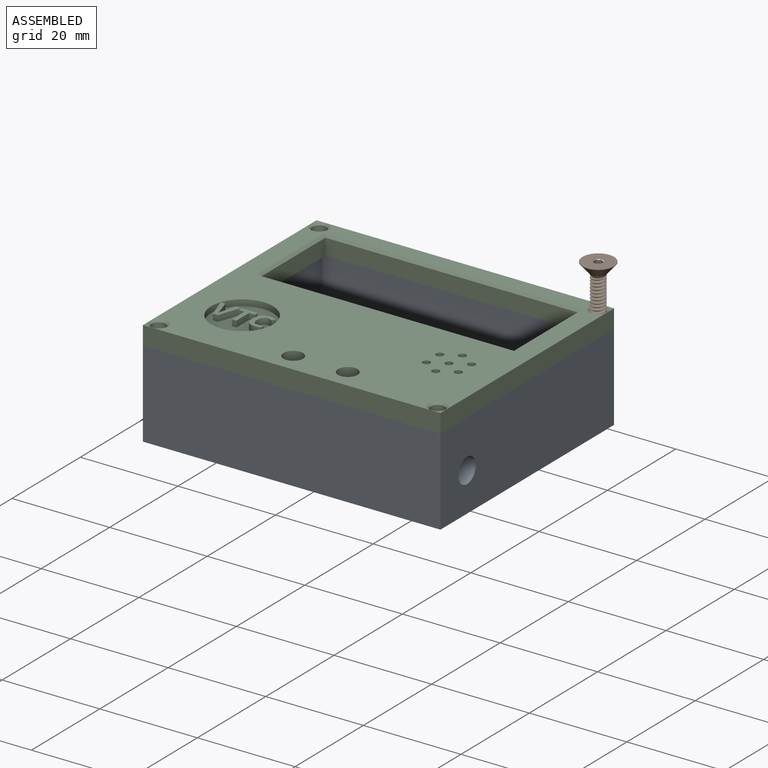
[diagram: assembled view]
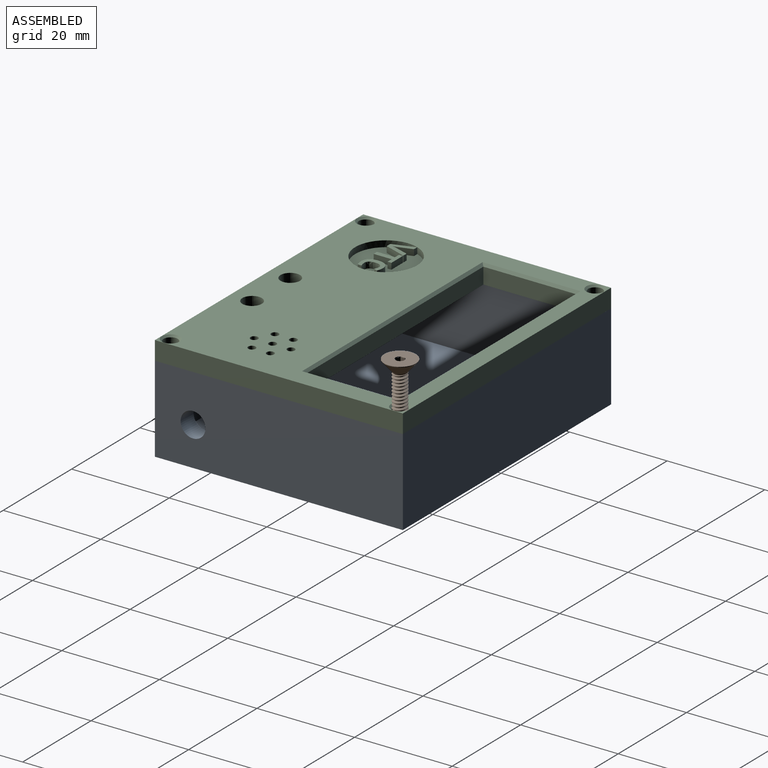
[diagram: assembled view, second angle]
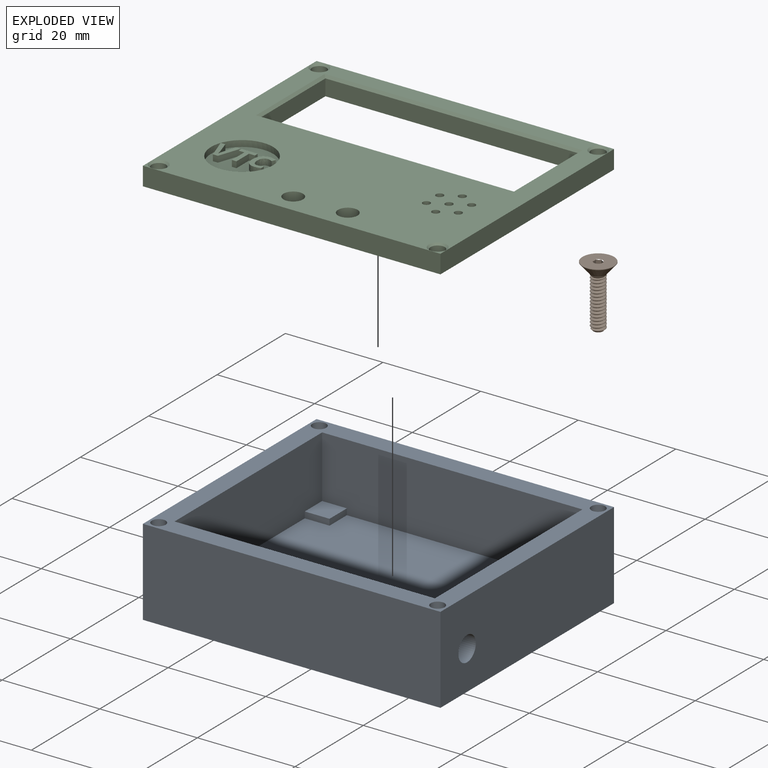
[diagram: exploded view]
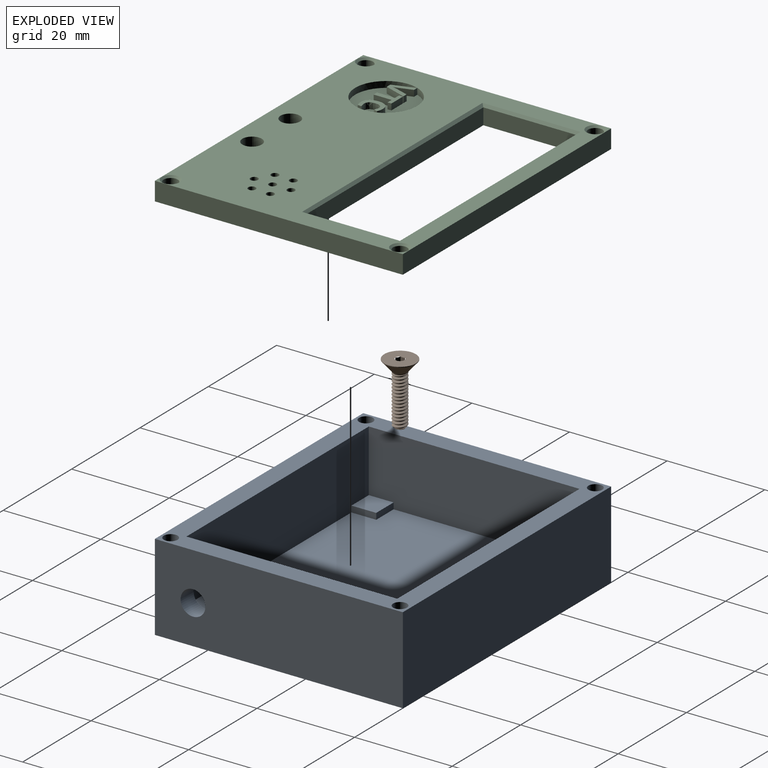
[diagram: exploded view, second angle]
ASSEMBLY  parts=3 mates=2
PART A: 30 faces, bbox 61x50.8x17.8 mm
  f0: plane 53.34x43.18mm, normal (0,0,1), area 2200mm2, adj f1,f2,f6,f11,f17,f18,f20,f21
  f1: plane 53.34x13.97mm, normal (0,1,0), area 732.3mm2, adj f0,f2,f6,f13,f18,f19,f27,f28
  f2: plane 43.18x13.97mm, normal (1,0,0), area 590.3mm2, adj f0,f1,f11,f13,f23,f25,f26,f28
  f3: plane 60.96x17.78mm, normal (0,-1,0), area 1083.9mm2, adj f4,f10,f13,f16
  f4: plane 50.8x17.78mm, normal (1,0,0), area 883mm2, adj f3,f5,f13,f16,f29
  f5: plane 60.96x17.78mm, normal (0,1,0), area 1083.9mm2, adj f4,f10,f13,f16
  f6: plane 43.18x13.97mm, normal (-1,0,0), area 570.1mm2, adj f0,f1,f11,f13,f17,f19,f20,f22
  f7: cylinder r=1.42mm len=13.97mm, axis (0,0,-1), area 124.9mm2, adj f13,f14
  f8: cylinder r=1.42mm len=17.78mm, axis (0,0,-1), area 158.9mm2, adj f13,f16
  f9: cylinder r=1.42mm len=13.97mm, axis (0,0,-1), area 124.9mm2, adj f13,f15
  f10: plane 50.8x17.78mm, normal (-1,0,0), area 903.2mm2, adj f3,f5,f13,f16
  f11: plane 53.34x13.97mm, normal (0,-1,0), area 732.3mm2, adj f0,f2,f6,f13,f21,f22,f24,f25
  f12: cylinder r=1.42mm len=17.78mm, axis (0,0,-1), area 158.9mm2, adj f13,f16
  f13: plane 60.96x50.8mm, normal (0,0,1), area 768.1mm2, adj f1,f2,f3,f4,f5,f6,f7,f8
  f14: plane 2.85x2.85mm, normal (0,0,1), area 6.4mm2, adj f7
  f15: plane 2.85x2.85mm, normal (0,0,1), area 6.4mm2, adj f9
  f16: plane 60.96x50.8mm, normal (0,0,-1), area 3084.1mm2, adj f3,f4,f5,f8,f10,f12
  f17: plane 5.08x1.27mm, normal (0,1,0), area 6.5mm2, adj f0,f6,f18,f19
  f18: plane 5.08x1.27mm, normal (-1,0,0), area 6.5mm2, adj f0,f1,f17,f19
  f19: plane 5.08x5.08mm, normal (0,0,1), area 25.8mm2, adj f1,f6,f17,f18
  f20: plane 5.08x1.27mm, normal (0,-1,0), area 6.5mm2, adj f0,f6,f21,f22
  f21: plane 5.08x1.27mm, normal (-1,0,0), area 6.5mm2, adj f0,f11,f20,f22
  f22: plane 5.08x5.08mm, normal (0,0,1), area 25.8mm2, adj f6,f11,f20,f21
  f23: plane 5.08x1.27mm, normal (0,-1,0), area 6.5mm2, adj f0,f2,f24,f25
  f24: plane 5.08x1.27mm, normal (1,0,0), area 6.5mm2, adj f0,f11,f23,f25
  f25: plane 5.08x5.08mm, normal (0,0,1), area 25.8mm2, adj f2,f11,f23,f24
  f26: plane 5.08x1.27mm, normal (0,1,0), area 6.5mm2, adj f0,f2,f27,f28
  f27: plane 5.08x1.27mm, normal (1,0,0), area 6.5mm2, adj f0,f1,f26,f28
  f28: plane 5.08x5.08mm, normal (0,0,1), area 25.8mm2, adj f1,f2,f26,f27
  f29: cylinder r=2.54mm len=5.08mm, axis (1,0,0), area 60.8mm2, adj f4,f6
PART B: 25 faces, bbox 6.8x13.2x6.8 mm
  f0: cylinder r=1.42mm len=9.91mm, axis (0,1,0), area 9.9mm2, adj f1,f6,f7,f24
  f1: cone r=0.95mm half-angle=45deg, axis (0,-1,0), area 0.6mm2, adj f0,f2,f6,f24
  f2: cone r=0.95mm half-angle=45deg, axis (0,-1,0), area 2.1mm2, adj f1,f3,f5,f6
  f3: cylinder r=1.01mm len=9.93mm, axis (0,-1,0), area 14.1mm2, adj f2,f4,f6,f24
  f4: cone r=1.42mm half-angle=46deg, axis (0,-1,0), area 2.3mm2, adj f3,f6,f7,f24
  f5: plane 1.89x1.89mm, normal (0,1,0), area 2.8mm2, adj f2
  f6: bspline ~10.93x3.29mm, area 57.2mm2, adj f0,f1,f2,f3,f4
  f7: torus R=1.73mm, axis (0,-1,0), area 2mm2, adj f0,f4,f8
  f8: cone r=1.5mm half-angle=41deg, axis (0,-1,0), area 39.5mm2, adj f7,f9
  f9: cylinder r=3.24mm len=6.48mm, axis (0,-1,0), area 2.1mm2, adj f8,f10
  f10: plane 6.48x6.48mm, normal (0,-1,0), area 30.3mm2, adj f9,f11,f19,f20,f21,f22,f23
  f11: cone r=0.92mm half-angle=60deg, axis (0,-1,0), area 0mm2, adj f10,f12
  f12: plane 1.76x1.2mm, normal (-1,0,0), area 1.3mm2, adj f11,f13,f17,f18
  f13: plane 1.83x1.59mm, normal (0,-1,0), area 2.2mm2, adj f12,f14,f15,f16,f17,f18
  f14: plane 1.76x1.08mm, normal (0.5,0,0.87), area 1.3mm2, adj f13,f15,f18,f22
  f15: plane 1.76x1.2mm, normal (1,0,0), area 1.3mm2, adj f13,f14,f16,f21
  f16: plane 1.76x1.08mm, normal (0.5,0,-0.87), area 1.3mm2, adj f13,f15,f17,f20
  f17: plane 1.76x1.08mm, normal (-0.5,0,-0.87), area 1.3mm2, adj f12,f13,f16,f19
  f18: plane 1.76x1.08mm, normal (-0.5,0,0.87), area 1.3mm2, adj f12,f13,f14,f23
  f19: cone r=0.92mm half-angle=60deg, axis (0,-1,0), area 0mm2, adj f10,f17
  f20: cone r=0.92mm half-angle=60deg, axis (0,-1,0), area 0mm2, adj f10,f16
  f21: cone r=0.92mm half-angle=60deg, axis (0,-1,0), area 0mm2, adj f10,f15
  f22: cone r=0.92mm half-angle=60deg, axis (0,-1,0), area 0mm2, adj f10,f14
  f23: cone r=0.92mm half-angle=60deg, axis (0,-1,0), area 0mm2, adj f10,f18
  f24: bspline ~10.5x3.29mm, area 57mm2, adj f0,f1,f3,f4
PART C: 71 faces, bbox 61x50.8x3.8 mm
  f0: plane 60.96x50.8mm, normal (0,0,1), area 1829.4mm2, adj f1,f2,f3,f7,f8,f12,f16,f17
  f1: plane 50.8x3.81mm, normal (-1,0,0), area 193.5mm2, adj f0,f2,f12,f15
  f2: plane 60.96x3.81mm, normal (0,-1,0), area 232.3mm2, adj f0,f1,f3,f15
  f3: plane 50.8x3.81mm, normal (1,0,0), area 193.5mm2, adj f0,f2,f12,f15
  f4: plane 19.05x3.3mm, normal (-1,0,0), area 62.9mm2, adj f5,f13,f15,f23
  f5: plane 51.82x3.3mm, normal (0,1,0), area 171.1mm2, adj f4,f6,f15,f21
  f6: plane 19.05x3.3mm, normal (1,0,0), area 62.9mm2, adj f5,f13,f15,f20
  f7: cylinder r=2mm len=4mm, axis (0,0,-1), area 47.9mm2, adj f0,f15
  f8: cylinder r=2mm len=4mm, axis (0,0,-1), area 47.9mm2, adj f0,f15
  f9: cylinder r=1.46mm len=3.43mm, axis (0,0,-1), area 31.5mm2, adj f15,f19
  f10: cylinder r=1.46mm len=3.43mm, axis (0,0,-1), area 31.5mm2, adj f15,f16
  f11: cylinder r=1.46mm len=3.43mm, axis (0,0,-1), area 31.5mm2, adj f15,f17
  f12: plane 60.96x3.81mm, normal (0,1,0), area 232.3mm2, adj f0,f1,f3,f15
  f13: plane 51.82x3.3mm, normal (0,-1,0), area 171.1mm2, adj f4,f6,f15,f22
  f14: cylinder r=1.46mm len=3.43mm, axis (0,0,-1), area 31.5mm2, adj f15,f18
  f15: plane 60.96x50.8mm, normal (0,0,-1), area 1931.1mm2, adj f1,f2,f3,f4,f5,f6,f7,f8
  f16: cone r=1.46mm half-angle=45deg, axis (0,0,1), area 5.6mm2, adj f0,f10
  f17: cone r=1.46mm half-angle=45deg, axis (0,0,1), area 5.6mm2, adj f0,f11
  f18: cone r=1.84mm half-angle=45deg, axis (0,0,1), area 5.6mm2, adj f0,f14
  f19: cone r=1.84mm half-angle=45deg, axis (0,0,1), area 5.6mm2, adj f0,f9
  f20: plane 20.07x0.51mm, normal (0.71,0,0.71), area 14.1mm2, adj f0,f6,f21,f22
  f21: plane 52.83x0.51mm, normal (0,0.71,0.71), area 37.6mm2, adj f0,f5,f20,f23
  f22: plane 52.83x0.51mm, normal (0,-0.71,0.71), area 37.6mm2, adj f0,f13,f20,f23
  f23: plane 20.07x0.51mm, normal (-0.71,0,0.71), area 14.1mm2, adj f0,f4,f21,f22
  f24: cylinder r=6.35mm len=12.7mm, axis (0,0,-1), area 60.8mm2, adj f15,f25
  f25: plane 12.7x12.7mm, normal (0,0,-1), area 113.9mm2, adj f24,f26,f27,f28,f29,f30,f31,f32
  f26: cylinder r=0.76mm len=2.29mm, axis (0,0,-1), area 10.9mm2, adj f0,f25
  f27: cylinder r=0.76mm len=2.29mm, axis (0,0,-1), area 10.9mm2, adj f0,f25
  f28: cylinder r=0.76mm len=2.29mm, axis (0,0,-1), area 10.9mm2, adj f0,f25
  f29: cylinder r=0.76mm len=2.29mm, axis (0,0,-1), area 10.9mm2, adj f0,f25
  f30: cylinder r=0.76mm len=2.29mm, axis (0,0,-1), area 10.9mm2, adj f0,f25
  f31: cylinder r=0.76mm len=2.29mm, axis (0,0,-1), area 10.9mm2, adj f0,f25
  f32: cylinder r=0.76mm len=2.29mm, axis (0,0,-1), area 10.9mm2, adj f0,f25
  f33: plane 2.66x1.27mm, normal (-0.95,0.3,0), area 3.5mm2, adj f34,f66,f67,f70
  f34: plane 1.27x0.96mm, normal (0,1,0), area 1.2mm2, adj f33,f35,f67,f70
  f35: plane 4.47x1.52mm, normal (0.95,-0.32,0), area 6mm2, adj f34,f36,f67,f70
  f36: plane 1.27x1.03mm, normal (0,-1,0), area 1.3mm2, adj f35,f37,f67,f70
  f37: plane 4.47x1.52mm, normal (-0.95,-0.32,0), area 6mm2, adj f36,f38,f67,f70
  f38: plane 1.27x0.96mm, normal (0,1,0), area 1.2mm2, adj f37,f39,f67,f70
  f39: plane 2.66x1.27mm, normal (0.95,0.3,0), area 3.5mm2, adj f38,f40,f67,f70
  f40: extruded ~1.27x0.55mm, area 0.7mm2, adj f39,f41,f67,f70
  f41: extruded ~1.27x0.44mm, area 0.6mm2, adj f40,f66,f67,f70
  f42: plane 3.68x1.27mm, normal (1,0,0), area 4.7mm2, adj f43,f63,f67,f69
  f43: plane 1.27x0.95mm, normal (0,-1,0), area 1.2mm2, adj f42,f44,f67,f69
  f44: plane 3.68x1.27mm, normal (-1,0,0), area 4.7mm2, adj f43,f45,f67,f69
  f45: plane 1.27x1.21mm, normal (0,-1,0), area 1.5mm2, adj f44,f46,f67,f69
  f46: plane 1.27x0.79mm, normal (-1,0,0), area 1mm2, adj f45,f47,f67,f69
  f47: plane 3.38x1.27mm, normal (0,1,0), area 4.3mm2, adj f46,f48,f67,f69
  f48: plane 1.27x0.79mm, normal (1,0,0), area 1mm2, adj f47,f63,f67,f69
  f49: extruded ~1.27x0.5mm, area 0.6mm2, adj f50,f64,f67,f68
  f50: extruded ~1.27x0.83mm, area 1.2mm2, adj f49,f51,f67,f68
  f51: extruded ~1.27x1.12mm, area 1.5mm2, adj f50,f52,f67,f68
  f52: extruded ~1.5x1.27mm, area 2.7mm2, adj f51,f53,f67,f68
  f53: extruded ~1.27x1.14mm, area 1.5mm2, adj f52,f54,f67,f68
  f54: plane 1.27x0.79mm, normal (1,0,0), area 1mm2, adj f53,f55,f67,f68
  f55: extruded ~1.27x1.23mm, area 1.6mm2, adj f54,f56,f67,f68
  f56: extruded ~1.49x1.27mm, area 2.1mm2, adj f55,f57,f67,f68
  f57: extruded ~1.7x1.27mm, area 2.3mm2, adj f56,f58,f67,f68
  f58: extruded ~1.27x1.22mm, area 1.6mm2, adj f57,f59,f67,f68
  f59: extruded ~1.27x0.8mm, area 1.4mm2, adj f58,f60,f67,f68
  f60: extruded ~1.27x1.11mm, area 1.5mm2, adj f59,f61,f67,f68
  f61: extruded ~1.31x1.27mm, area 1.7mm2, adj f60,f62,f67,f68
  f62: plane 1.27x0.77mm, normal (0.93,-0.37,0), area 1.1mm2, adj f61,f64,f67,f68
  f63: plane 1.27x1.21mm, normal (0,-1,0), area 1.5mm2, adj f42,f48,f67,f69
  f64: extruded ~1.27x0.51mm, area 0.7mm2, adj f49,f62,f67,f68
  f65: cylinder r=6.35mm len=12.7mm, axis (0,0,1), area 50.7mm2, adj f0,f67
  f66: extruded ~1.27x0.98mm, area 1.3mm2, adj f33,f41,f67,f70
  f67: plane 12.7x12.7mm, normal (0,0,1), area 105.8mm2, adj f33,f34,f35,f36,f37,f38,f39,f40
  f68: plane 4.6x3.41mm, normal (0,0,1), area 7mm2, adj f49,f50,f51,f52,f53,f54,f55,f56
  f69: plane 4.47x3.38mm, normal (0,0,1), area 6.2mm2, adj f42,f43,f44,f45,f46,f47,f48,f63
  f70: plane 4.47x4.07mm, normal (0,0,1), area 7.7mm2, adj f33,f34,f35,f36,f37,f38,f39,f40
PLACE A t=(4.41,-25.35,16.19)mm
PLACE B rot(axis=(-1,0,0),90deg) t=(6.31,19.73,42.86)mm
PLACE C t=(8.22,-29.16,30.16)mm
MATE parallel C.f15 <-> A.f13  axis (0,0,-1) through (8.22,-29.16,30.16)mm
MATE fastened B.f0 <-> A.f8  axis (0,0,-1) through (6.31,19.73,30.16)mm
